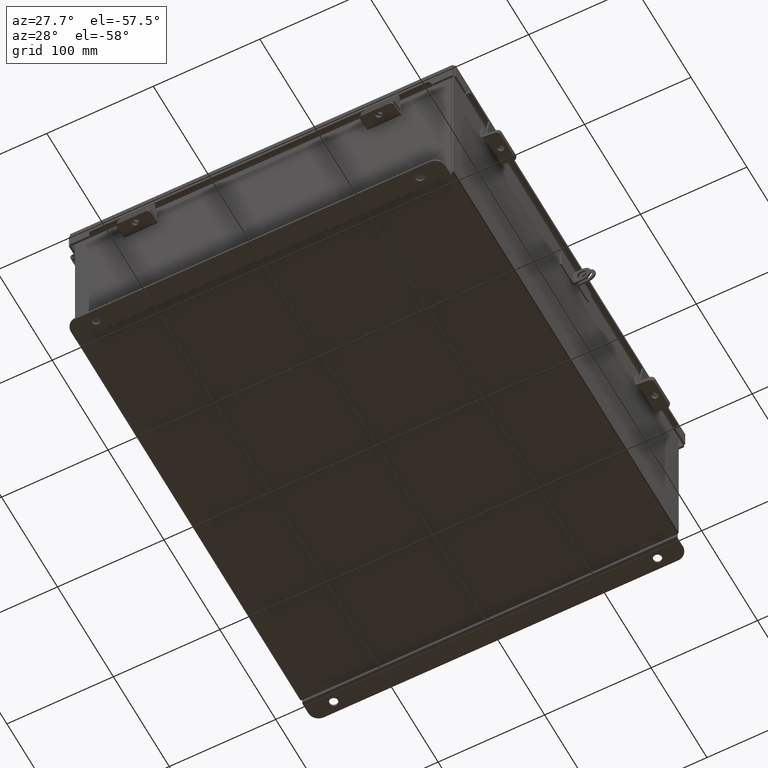
[diagram: clean part render]
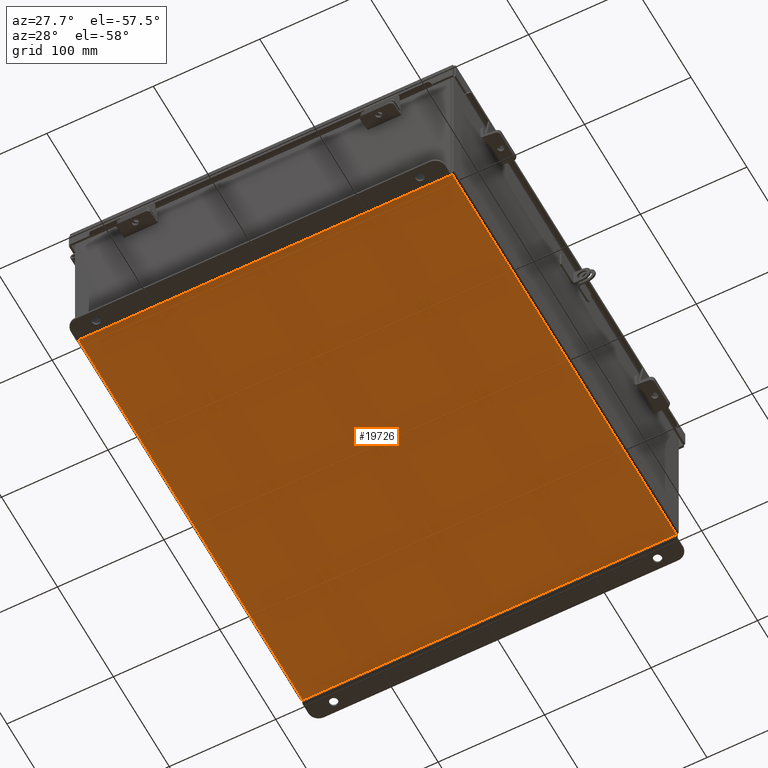
[diagram: same view with one face highlighted and labeled with its STEP entity id]
A machine part, auxiliary view. The second image highlights one B-rep face of the part: STEP entity #19726.
In plain terms, the highlighted planar face has unit normal (0, 0, -1).
Its self-contained STEP definition (entity closure, byte-faithful):
#246 = ORIENTED_EDGE ( 'NONE', *, *, #2056, .T. ) ;
#540 = AXIS2_PLACEMENT_3D ( 'NONE', #17974, #8659, #19509 ) ;
#849 = CARTESIAN_POINT ( 'NONE',  ( -6.912299999999999200, -7.925299999999997300, -0.07469999999999994700 ) ) ;
#977 = VECTOR ( 'NONE', #1708, 39.37007874015748100 ) ;
#1599 = VERTEX_POINT ( 'NONE', #849 ) ;
#1622 = CARTESIAN_POINT ( 'NONE',  ( 6.912299999999999200, 7.925300000000001800, -0.07469999999999994700 ) ) ;
#1708 = DIRECTION ( 'NONE',  ( -0.0000000000000000000, 1.000000000000000000, -0.0000000000000000000 ) ) ;
#1829 = DIRECTION ( 'NONE',  ( -0.0000000000000000000, -1.000000000000000000, -0.0000000000000000000 ) ) ;
#2056 = EDGE_CURVE ( 'NONE', #1599, #9275, #12905, .T. ) ;
#2365 = PLANE ( 'NONE',  #540 ) ;
#5628 = ORIENTED_EDGE ( 'NONE', *, *, #16548, .F. ) ;
#5877 = VECTOR ( 'NONE', #1829, 39.37007874015748100 ) ;
#7001 = CARTESIAN_POINT ( 'NONE',  ( -6.912299999999999200, 7.925300000000000900, -0.07470000000000000300 ) ) ;
#7373 = EDGE_CURVE ( 'NONE', #11298, #17293, #18308, .T. ) ;
#8147 = VECTOR ( 'NONE', #11802, 39.37007874015748100 ) ;
#8585 = CARTESIAN_POINT ( 'NONE',  ( -7.000000000000000000, -7.925299999999997300, -0.07470000000000000300 ) ) ;
#8659 = DIRECTION ( 'NONE',  ( 0.0000000000000000000, 0.0000000000000000000, -1.000000000000000000 ) ) ;
#8737 = CARTESIAN_POINT ( 'NONE',  ( -7.000000000000000000, 7.925300000000000900, -0.07470000000000000300 ) ) ;
#9076 = CARTESIAN_POINT ( 'NONE',  ( -6.912299999999999200, -7.925299999999998200, -0.07469999999999994700 ) ) ;
#9275 = VERTEX_POINT ( 'NONE', #7001 ) ;
#10159 = DIRECTION ( 'NONE',  ( 1.000000000000000000, 0.0000000000000000000, 0.0000000000000000000 ) ) ;
#10879 = EDGE_LOOP ( 'NONE', ( #12350, #18451, #5628, #246 ) ) ;
#11127 = EDGE_CURVE ( 'NONE', #11298, #9275, #16430, .T. ) ;
#11298 = VERTEX_POINT ( 'NONE', #18445 ) ;
#11802 = DIRECTION ( 'NONE',  ( -1.000000000000000000, -0.0000000000000000000, -0.0000000000000000000 ) ) ;
#12061 = LINE ( 'NONE', #8585, #19833 ) ;
#12350 = ORIENTED_EDGE ( 'NONE', *, *, #11127, .F. ) ;
#12905 = LINE ( 'NONE', #9076, #977 ) ;
#13880 = FACE_OUTER_BOUND ( 'NONE', #10879, .T. ) ;
#16430 = LINE ( 'NONE', #8737, #8147 ) ;
#16548 = EDGE_CURVE ( 'NONE', #1599, #17293, #12061, .T. ) ;
#16783 = CARTESIAN_POINT ( 'NONE',  ( 6.912299999999999200, -7.925299999999997300, -0.07470000000000000300 ) ) ;
#17293 = VERTEX_POINT ( 'NONE', #16783 ) ;
#17974 = CARTESIAN_POINT ( 'NONE',  ( 0.0000000000000000000, 0.0000000000000000000, -0.07470000000000000300 ) ) ;
#18308 = LINE ( 'NONE', #1622, #5877 ) ;
#18445 = CARTESIAN_POINT ( 'NONE',  ( 6.912299999999999200, 7.925300000000000000, -0.07469999999999994700 ) ) ;
#18451 = ORIENTED_EDGE ( 'NONE', *, *, #7373, .T. ) ;
#19509 = DIRECTION ( 'NONE',  ( -1.000000000000000000, 0.0000000000000000000, -0.0000000000000000000 ) ) ;
#19726 = ADVANCED_FACE ( 'NONE', ( #13880 ), #2365, .T. ) ;
#19833 = VECTOR ( 'NONE', #10159, 39.37007874015748100 ) ;